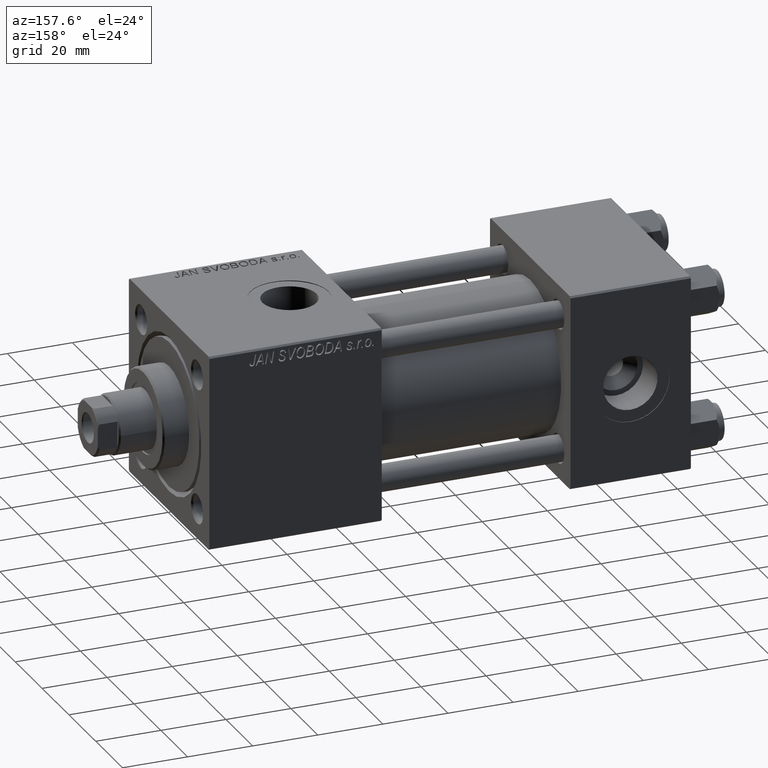
[diagram: clean part render]
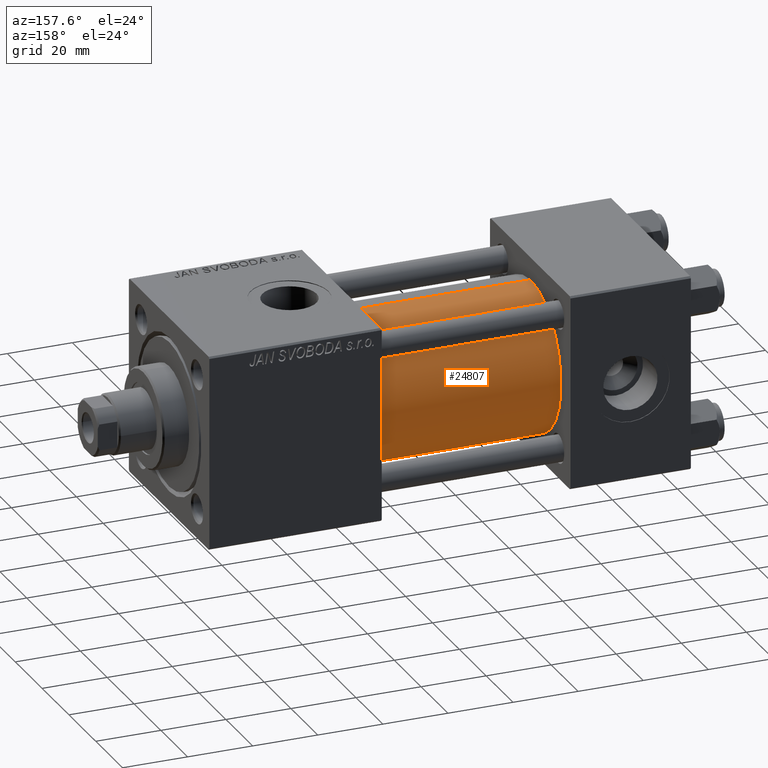
[diagram: same view with one face highlighted and labeled with its STEP entity id]
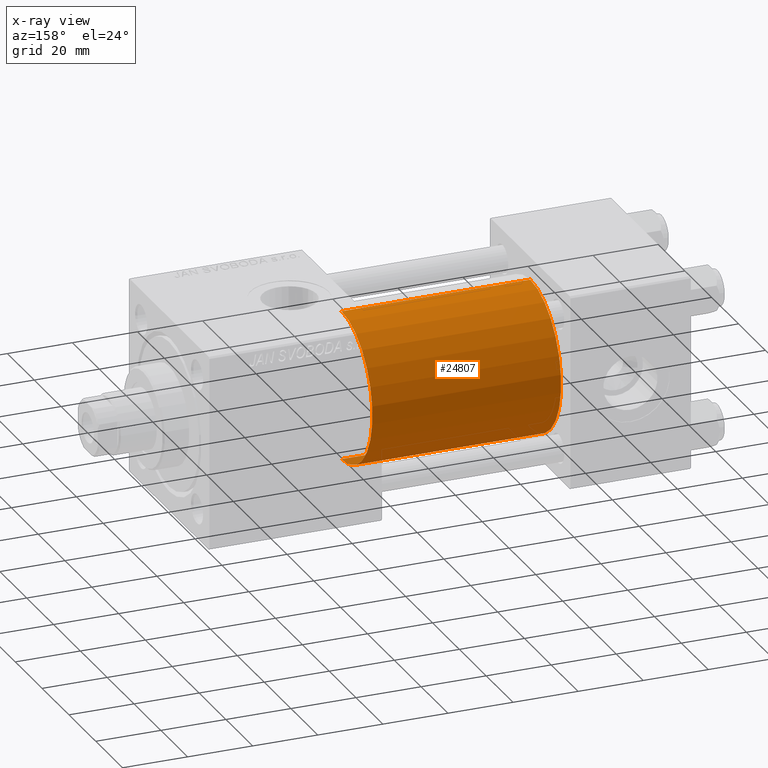
[diagram: x-ray of the same camera — body ghosted, the highlighted face saturated]
A machine part, auxiliary view. The second image highlights one B-rep face of the part: STEP entity #24807.
The next image is the same camera in x-ray: the body ghosted, the highlighted face saturated — about 0% of this face is hidden behind the body in this view.
In plain terms, the highlighted cylindrical surface (partial cylindrical patch) has radius 23 mm, axis along (-1, -0, -0).
Its self-contained STEP definition (entity closure, byte-faithful):
#303 = EDGE_CURVE ( 'NONE', #27437, #39423, #46745, .T. ) ;
#1734 = ORIENTED_EDGE ( 'NONE', *, *, #303, .T. ) ;
#1968 = ORIENTED_EDGE ( 'NONE', *, *, #31070, .F. ) ;
#1994 = DIRECTION ( 'NONE',  ( -1.000000000000000000, -0.000000000000000000, -0.000000000000000000 ) ) ;
#2090 = DIRECTION ( 'NONE',  ( 0.000000000000000000, 0.000000000000000000, 1.000000000000000000 ) ) ;
#2608 = DIRECTION ( 'NONE',  ( -1.000000000000000000, -0.000000000000000000, -0.000000000000000000 ) ) ;
#6974 = ORIENTED_EDGE ( 'NONE', *, *, #48638, .F. ) ;
#9917 = EDGE_CURVE ( 'NONE', #44778, #27437, #50123, .T. ) ;
#10293 = ORIENTED_EDGE ( 'NONE', *, *, #9917, .T. ) ;
#12543 = DIRECTION ( 'NONE',  ( 0.000000000000000000, 0.000000000000000000, 1.000000000000000000 ) ) ;
#13099 = CIRCLE ( 'NONE', #42590, 23.00000000000000000 ) ;
#14241 = CARTESIAN_POINT ( 'NONE',  ( 95.00000000000000000, 2.146024240737012665E-16, -23.00000000000000000 ) ) ;
#16887 = CARTESIAN_POINT ( 'NONE',  ( 37.00000000000000000, -2.602085213965210642E-15, 23.00000000000000000 ) ) ;
#17767 = DIRECTION ( 'NONE',  ( 0.000000000000000000, 0.000000000000000000, -1.000000000000000000 ) ) ;
#17859 = LINE ( 'NONE', #22338, #21588 ) ;
#18482 = CYLINDRICAL_SURFACE ( 'NONE', #40778, 23.00000000000000000 ) ;
#19559 = VERTEX_POINT ( 'NONE', #30968 ) ;
#19800 = CARTESIAN_POINT ( 'NONE',  ( 95.00000000000000000, 2.146024240737012665E-16, -23.00000000000000000 ) ) ;
#20875 = VECTOR ( 'NONE', #30059, 1000.000000000000000 ) ;
#21588 = VECTOR ( 'NONE', #1994, 1000.000000000000000 ) ;
#21652 = CARTESIAN_POINT ( 'NONE',  ( 37.00000000000000000, 2.146024240737012665E-16, -23.00000000000000000 ) ) ;
#21731 = CARTESIAN_POINT ( 'NONE',  ( 95.00000000000000000, -2.602085213965210642E-15, 0.000000000000000000 ) ) ;
#22338 = CARTESIAN_POINT ( 'NONE',  ( 95.00000000000000000, -2.602085213965210642E-15, 23.00000000000000000 ) ) ;
#24807 = ADVANCED_FACE ( 'NONE', ( #38270 ), #18482, .T. ) ;
#27437 = VERTEX_POINT ( 'NONE', #21652 ) ;
#30059 = DIRECTION ( 'NONE',  ( -1.000000000000000000, -0.000000000000000000, -0.000000000000000000 ) ) ;
#30968 = CARTESIAN_POINT ( 'NONE',  ( 95.00000000000000000, -2.602085213965210642E-15, 23.00000000000000000 ) ) ;
#31070 = EDGE_CURVE ( 'NONE', #44778, #19559, #13099, .T. ) ;
#32316 = CARTESIAN_POINT ( 'NONE',  ( 37.00000000000000000, -2.602085213965210642E-15, 0.000000000000000000 ) ) ;
#32580 = DIRECTION ( 'NONE',  ( 1.000000000000000000, -0.000000000000000000, 0.000000000000000000 ) ) ;
#34817 = CARTESIAN_POINT ( 'NONE',  ( 95.00000000000000000, -2.602085213965210642E-15, 0.000000000000000000 ) ) ;
#37833 = DIRECTION ( 'NONE',  ( 1.000000000000000000, 0.000000000000000000, 0.000000000000000000 ) ) ;
#38270 = FACE_OUTER_BOUND ( 'NONE', #46852, .T. ) ;
#39423 = VERTEX_POINT ( 'NONE', #16887 ) ;
#40778 = AXIS2_PLACEMENT_3D ( 'NONE', #34817, #2608, #2090 ) ;
#42590 = AXIS2_PLACEMENT_3D ( 'NONE', #21731, #37833, #17767 ) ;
#44778 = VERTEX_POINT ( 'NONE', #19800 ) ;
#46745 = CIRCLE ( 'NONE', #51801, 23.00000000000000000 ) ;
#46852 = EDGE_LOOP ( 'NONE', ( #1968, #10293, #1734, #6974 ) ) ;
#48638 = EDGE_CURVE ( 'NONE', #19559, #39423, #17859, .T. ) ;
#50123 = LINE ( 'NONE', #14241, #20875 ) ;
#51801 = AXIS2_PLACEMENT_3D ( 'NONE', #32316, #32580, #12543 ) ;